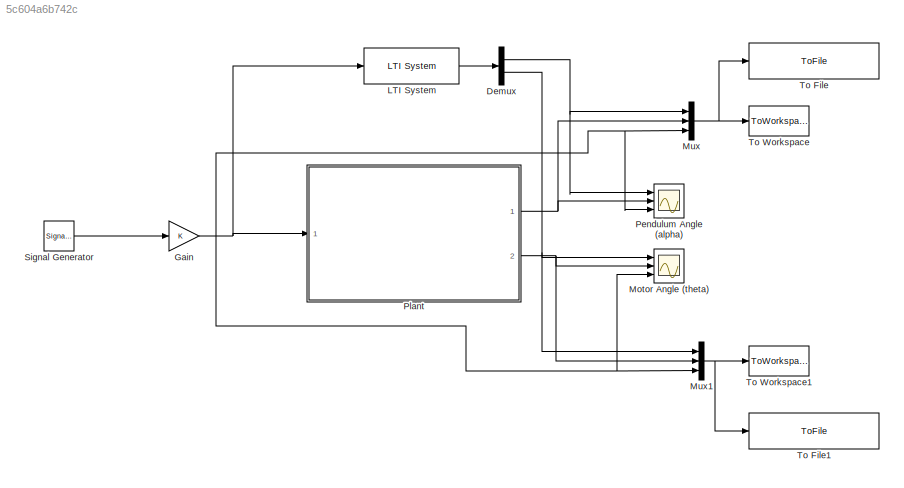
MODEL slx_5c604a6b742c
KIND model
CONFIG AbsTol = auto
CONFIG EnableMultiTasking = on
CONFIG FixedStep = 0.002
CONFIG MaxStep = auto
CONFIG MinStep = auto
CONFIG RelTol = 1e-3
CONFIG SampleTimeConstraint = Unconstrained
CONFIG Solver = ode1
CONFIG SolverName = ode1
CONFIG StartTime = 0.0
CONFIG StopTime = 30
BLOCK [Demux] Demux
  DisplayOption = bar
  Outputs = 2
  Ports = [1, 2]
BLOCK [Gain] Gain
  OutDataTypeStr = Inherit: Inherit via internal rule
  ParamDataTypeStr = Inherit: Inherit via internal rule
  SaturateOnIntegerOverflow = off
BLOCK [Reference] LTI System  REF=cstblocks/LTI System
  Ports = [1, 1]
  SourceBlock = cstblocks/LTI System
  SourceProductBaseCode = CT
  SourceProductName = Control System Toolbox
  SourceType = LTI Block
BLOCK [Scope] Motor Angle (theta)
  Floating = off
  NumInputPorts = 3
  Ports = [3]
  ScopeSpecificationString = Simulink.scopes.TimeScopeBlockCfg('CurrentConfiguration', extmgr.ConfigurationSet(extmgr.Configuration('Core','General UI',true),extmgr.Configuration('Core','Source UI',true),extmgr.Configuration('Sources','WiredSimulink',true),extmgr.Configuration('Visuals','Time Domain',true,'SerializedDisplays',{struct('MinYLimReal','-4.94413','MaxYLimReal','5.03841','YLabelReal','','MinYLimMag','0.00000','MaxY...<+1385ch>
BLOCK [Mux] Mux
  DisplayOption = bar
  Inputs = 3
  Ports = [3, 1]
BLOCK [Mux] Mux1
  DisplayOption = bar
  Inputs = 3
  Ports = [3, 1]
BLOCK [Scope] Pendulum Angle (alpha)
  Floating = off
  NumInputPorts = 3
  Ports = [3]
  ScopeSpecificationString = Simulink.scopes.TimeScopeBlockCfg('CurrentConfiguration', extmgr.ConfigurationSet(extmgr.Configuration('Core','General UI',true),extmgr.Configuration('Core','Source UI',true),extmgr.Configuration('Sources','WiredSimulink',true,'DataLoggingVariableName','ScopeData1'),extmgr.Configuration('Visuals','Time Domain',true,'SerializedDisplays',{struct('MinYLimReal','-1.31893','MaxYLimReal','1.87039','YLab...<+1425ch>
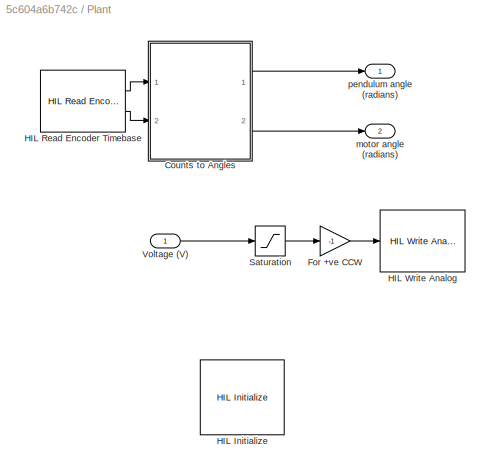
BLOCK [SubSystem] Plant
  Ports = [1, 2]
  RequestExecContextInheritance = off
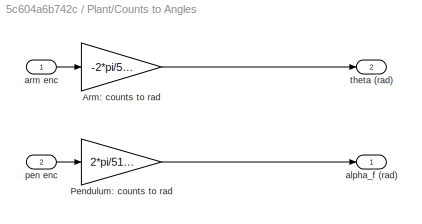
BLOCK [SubSystem] Plant/Counts to Angles
  Ports = [2, 2]
  RequestExecContextInheritance = off
BLOCK [Gain] Plant/Counts to Angles/Arm: counts to rad
  Gain = -2*pi/512/4
  OutDataTypeStr = Inherit: Inherit via internal rule
  ParamDataTypeStr = Inherit: Inherit via internal rule
  SaturateOnIntegerOverflow = off
BLOCK [Gain] Plant/Counts to Angles/Pendulum: counts to rad
  Gain = 2*pi/512/4
  OutDataTypeStr = Inherit: Inherit via internal rule
  ParamDataTypeStr = Inherit: Inherit via internal rule
  SaturateOnIntegerOverflow = off
BLOCK [Outport] Plant/Counts to Angles/alpha_f (rad)
  IconDisplay = Port number
BLOCK [Inport] Plant/Counts to Angles/arm enc
  IconDisplay = Port number
BLOCK [Inport] Plant/Counts to Angles/pen enc
  IconDisplay = Port number
  Port = 2
BLOCK [Outport] Plant/Counts to Angles/theta (rad)
  IconDisplay = Port number
  Port = 2
BLOCK [Gain] Plant/For +ve CCW
  Gain = -1
  OutDataTypeStr = Inherit: Inherit via internal rule
  ParamDataTypeStr = Inherit: Inherit via internal rule
  SaturateOnIntegerOverflow = off
BLOCK [Reference] Plant/HIL Initialize  REF=quarc_library/Data Acquisition/Generic/Configuration/HIL Initialize
  AttributesFormatString = %<object_name> (%<board_type>-%<board_number>)
  Ports = []
  SourceBlock = quarc_library/Data Acquisition/Generic/Configuration/HIL Initialize
  SourceProductName = QUARC Targets
  SourceType = HIL Initialize
  UserDataPersistent = on
BLOCK [Reference] Plant/HIL Read Encoder Timebase  REF=quarc_library/Data Acquisition/Generic/Timebases/HIL Read Encoder
Timebase
  AttributesFormatString = (%<object_name>)
  Ports = [0, 2]
  SourceBlock = quarc_library/Data Acquisition/Generic/Timebases/HIL Read Encoder\nTimebase
  SourceProductName = QUARC Targets
  SourceType = HIL Read Encoder Timebase
  UserDataPersistent = on
BLOCK [Reference] Plant/HIL Write Analog  REF=quarc_library/Data Acquisition/Generic/Immediate I//O/HIL Write Analog
  AttributesFormatString = (%<object_name>)
  Ports = [1]
  SourceBlock = quarc_library/Data Acquisition/Generic/Immediate I//O/HIL Write Analog
  SourceProductName = QUARC Targets
  SourceType = HIL Write Analog
  UserDataPersistent = on
BLOCK [Saturate] Plant/Saturation
  InputPortMap = u0
  LowerLimit = -10
  Ports = [1, 1]
  UpperLimit = 10
BLOCK [Inport] Plant/Voltage (V)
  IconDisplay = Port number
BLOCK [Outport] Plant/motor angle (radians)
  IconDisplay = Port number
  Port = 2
BLOCK [Outport] Plant/pendulum angle (radians)
  IconDisplay = Port number
BLOCK [SignalGenerator] Signal Generator
  Frequency = 6.28
  Ports = [0, 1]
  Units = rad/sec
BLOCK [ToFile] To File
  Filename = plant_check_alpha.mat
  Ports = [1]
BLOCK [ToFile] To File1
  Filename = plant_check_theta.mat
  Ports = [1]
BLOCK [ToWorkspace] To Workspace
  MaxDataPoints = inf
  Ports = [1]
  SampleTime = -1
  Save2DSignal = 2-D array (concatenate along first dimension)
  SaveFormat = Timeseries
  VariableName = alpha
BLOCK [ToWorkspace] To Workspace1
  FixptAsFi = on
  MaxDataPoints = inf
  Ports = [1]
  SampleTime = -1
  Save2DSignal = 2-D array (concatenate along first dimension)
  VariableName = theta
NET Demux:1 -> Mux:1, Pendulum Angle (alpha):1
NET Demux:2 -> Motor Angle (theta):1, Mux1:1
NET Gain:1 -> LTI System:1, Motor Angle (theta):3, Mux1:3, Mux:3, Pendulum Angle (alpha):3, Plant:1
LINE LTI System:1 -> Demux:1
NET Mux1:1 -> To File1:1, To Workspace1:1
NET Mux:1 -> To File:1, To Workspace:1
LINE Plant/Counts to Angles/Arm: counts to rad:1 -> Plant/Counts to Angles/theta (rad):1
LINE Plant/Counts to Angles/Pendulum: counts to rad:1 -> Plant/Counts to Angles/alpha_f (rad):1
LINE Plant/Counts to Angles/arm enc:1 -> Plant/Counts to Angles/Arm: counts to rad:1
LINE Plant/Counts to Angles/pen enc:1 -> Plant/Counts to Angles/Pendulum: counts to rad:1
LINE Plant/Counts to Angles:1 -> Plant/pendulum angle (radians):1
LINE Plant/Counts to Angles:2 -> Plant/motor angle (radians):1
LINE Plant/For +ve CCW:1 -> Plant/HIL Write Analog:1
LINE Plant/HIL Read Encoder Timebase:1 -> Plant/Counts to Angles:1
LINE Plant/HIL Read Encoder Timebase:2 -> Plant/Counts to Angles:2
LINE Plant/Saturation:1 -> Plant/For +ve CCW:1
LINE Plant/Voltage (V):1 -> Plant/Saturation:1
NET Plant:1 -> Mux:2, Pendulum Angle (alpha):2
NET Plant:2 -> Motor Angle (theta):2, Mux1:2
LINE Signal Generator:1 -> Gain:1
note: NET lines group one-source signal fan-out (src -> all destinations, sorted); 1:1 wires keep LINE
